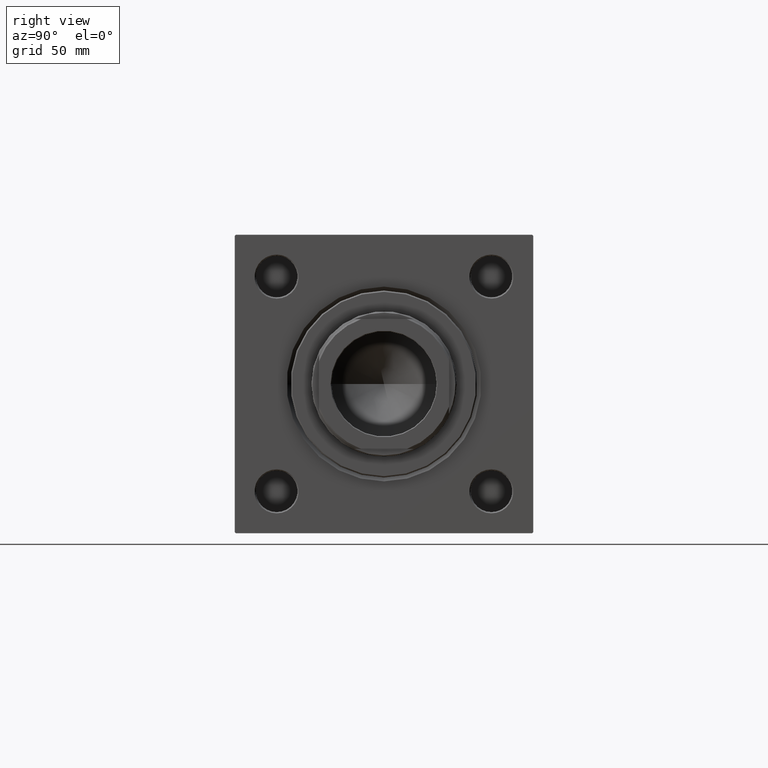
[diagram: clean part render]
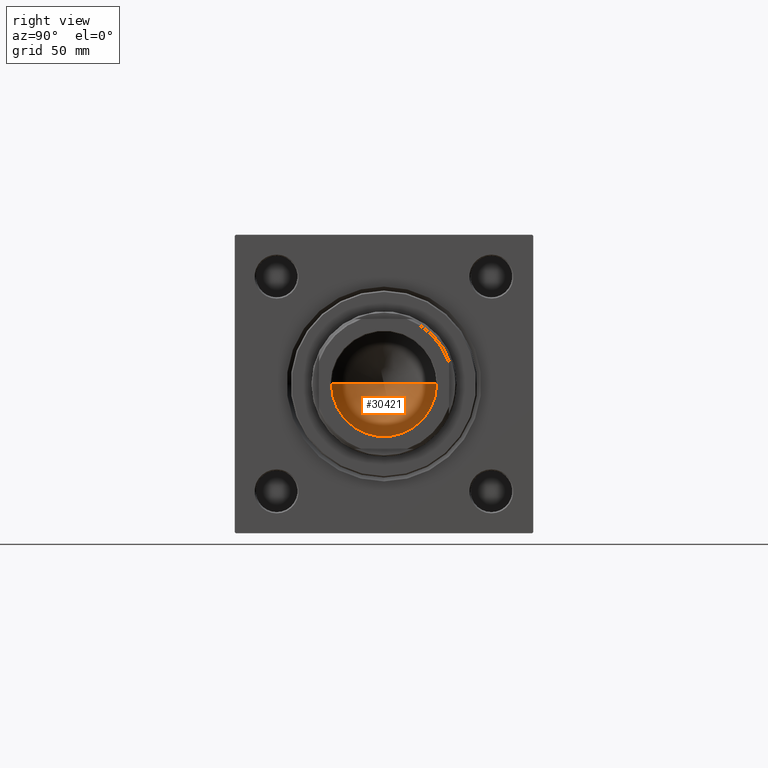
[diagram: same view with one face highlighted and labeled with its STEP entity id]
A machine part, right view. The second image highlights one B-rep face of the part: STEP entity #30421.
In plain terms, the highlighted conical surface has half-angle 59 deg.
Its self-contained STEP definition (entity closure, byte-faithful):
#5911 = ORIENTED_EDGE ( 'NONE', *, *, #40207, .T. ) ;
#7439 = CARTESIAN_POINT ( 'NONE',  ( 20.24999999999998934, 0.000000000000000000, 105.0000000000000142 ) ) ;
#8656 = ORIENTED_EDGE ( 'NONE', *, *, #18352, .T. ) ;
#8745 = EDGE_LOOP ( 'NONE', ( #20013, #5911, #8656 ) ) ;
#9270 = DIRECTION ( 'NONE',  ( -0.000000000000000000, -0.000000000000000000, 1.000000000000000000 ) ) ;
#14400 = DIRECTION ( 'NONE',  ( -0.8571673007021115565, 1.049727191138617710E-16, 0.5150380749100554878 ) ) ;
#15549 = VERTEX_POINT ( 'NONE', #21748 ) ;
#18352 = EDGE_CURVE ( 'NONE', #48368, #15549, #28750, .T. ) ;
#20013 = ORIENTED_EDGE ( 'NONE', *, *, #48299, .F. ) ;
#20233 = CARTESIAN_POINT ( 'NONE',  ( 20.24999999999998934, 0.000000000000000000, 105.0000000000000142 ) ) ;
#21748 = CARTESIAN_POINT ( 'NONE',  ( -20.24999999999998934, 2.479909768273389117E-15, 105.0000000000000142 ) ) ;
#22555 = DIRECTION ( 'NONE',  ( 0.8571673007021115565, 0.000000000000000000, 0.5150380749100554878 ) ) ;
#23956 = VECTOR ( 'NONE', #22555, 1000.000000000000000 ) ;
#24899 = VECTOR ( 'NONE', #14400, 1000.000000000000000 ) ;
#26056 = VERTEX_POINT ( 'NONE', #39421 ) ;
#27977 = CARTESIAN_POINT ( 'NONE',  ( 0.000000000000000000, 0.000000000000000000, 105.0000000000000142 ) ) ;
#28750 = CIRCLE ( 'NONE', #36937, 20.24999999999998934 ) ;
#30421 = ADVANCED_FACE ( 'NONE', ( #44117 ), #39273, .F. ) ;
#32570 = DIRECTION ( 'NONE',  ( -0.000000000000000000, -0.000000000000000000, 1.000000000000000000 ) ) ;
#34085 = LINE ( 'NONE', #38432, #24899 ) ;
#34821 = LINE ( 'NONE', #7439, #23956 ) ;
#36937 = AXIS2_PLACEMENT_3D ( 'NONE', #45124, #9270, #44356 ) ;
#38432 = CARTESIAN_POINT ( 'NONE',  ( -20.24999999999998934, 2.479909768273389117E-15, 105.0000000000000142 ) ) ;
#39273 = CONICAL_SURFACE ( 'NONE', #45862, 20.24999999999998934, 1.029744258676652979 ) ;
#39421 = CARTESIAN_POINT ( 'NONE',  ( -1.584115414415908206E-14, 0.000000000000000000, 92.83257246469187862 ) ) ;
#40207 = EDGE_CURVE ( 'NONE', #26056, #48368, #34821, .T. ) ;
#44117 = FACE_OUTER_BOUND ( 'NONE', #8745, .T. ) ;
#44356 = DIRECTION ( 'NONE',  ( 1.000000000000000000, 0.000000000000000000, 0.000000000000000000 ) ) ;
#44377 = DIRECTION ( 'NONE',  ( 1.000000000000000000, 0.000000000000000000, 0.000000000000000000 ) ) ;
#45124 = CARTESIAN_POINT ( 'NONE',  ( 0.000000000000000000, 0.000000000000000000, 105.0000000000000142 ) ) ;
#45862 = AXIS2_PLACEMENT_3D ( 'NONE', #27977, #32570, #44377 ) ;
#48299 = EDGE_CURVE ( 'NONE', #26056, #15549, #34085, .T. ) ;
#48368 = VERTEX_POINT ( 'NONE', #20233 ) ;